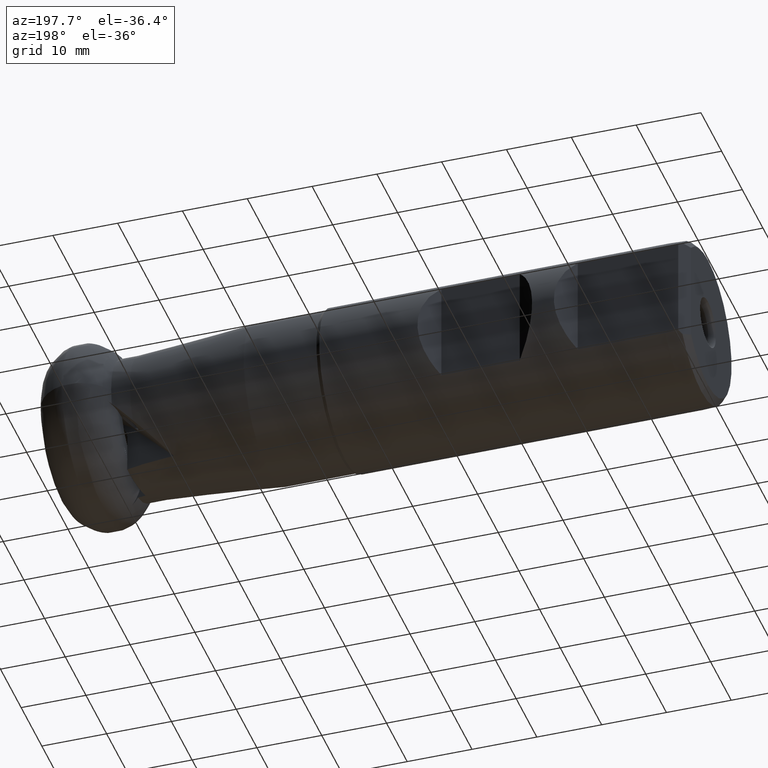
[diagram: clean part render]
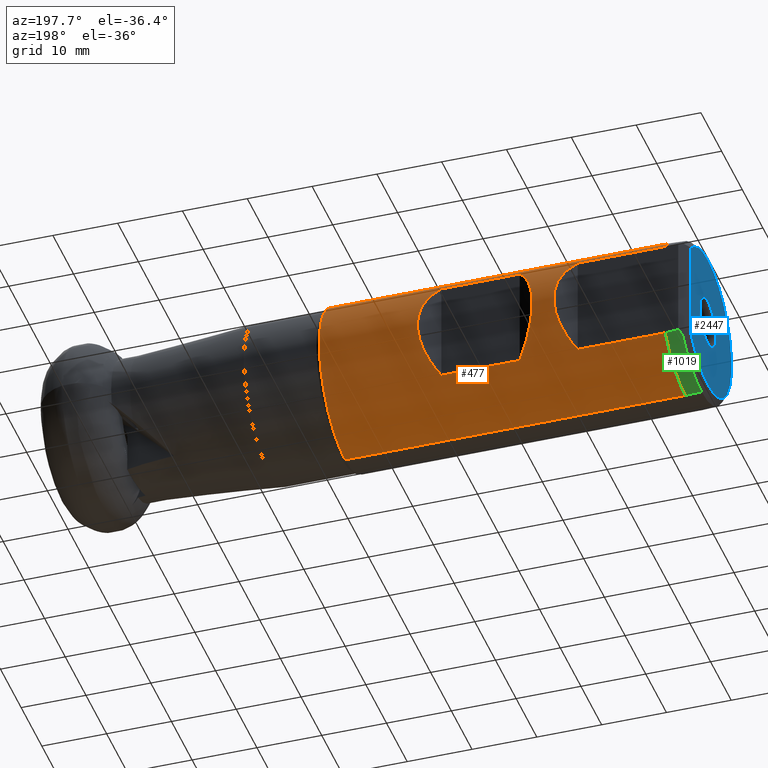
[diagram: same view with three faces highlighted in distinct colors, each labeled with its STEP entity id]
A machine part, auxiliary view with three faces highlighted in distinct colors.
Their STEP definitions:

[orange] entity #477 — the highlighted cylindrical surface (partial cylindrical patch) has radius 12.5 mm, axis along (1, -0, -0).
#5 = CARTESIAN_POINT ( 'NONE',  ( -95.25000000000000000, 0.0000000000000000000, -12.49999999999998900 ) ) ;
#36 = DIRECTION ( 'NONE',  ( 1.000000000000000000, -0.0000000000000000000, -0.0000000000000000000 ) ) ;
#64 = EDGE_CURVE ( 'NONE', #2789, #1758, #932, .T. ) ;
#97 = LINE ( 'NONE', #1852, #4157 ) ;
#203 = ORIENTED_EDGE ( 'NONE', *, *, #349, .F. ) ;
#231 = DIRECTION ( 'NONE',  ( 0.0000000000000000000, 0.0000000000000000000, -1.000000000000000000 ) ) ;
#235 = CARTESIAN_POINT ( 'NONE',  ( -60.70000000000000300, 9.700000000000011700, 7.884161337770784400 ) ) ;
#287 = DIRECTION ( 'NONE',  ( 1.000000000000000000, -0.0000000000000000000, -0.0000000000000000000 ) ) ;
#320 = CIRCLE ( 'NONE', #2833, 12.49999999999998900 ) ;
#327 = VERTEX_POINT ( 'NONE', #4078 ) ;
#349 = EDGE_CURVE ( 'NONE', #2933, #2977, #1242, .T. ) ;
#361 = CARTESIAN_POINT ( 'NONE',  ( -76.69717868338568700, 13.59717868338556100, -3.089404912919587100 ) ) ;
#374 = VECTOR ( 'NONE', #36, 1000.000000000000000 ) ;
#396 = EDGE_LOOP ( 'NONE', ( #2652, #203, #2732, #2431 ) ) ;
#413 = AXIS2_PLACEMENT_3D ( 'NONE', #1223, #2490, #1863 ) ;
#431 = CARTESIAN_POINT ( 'NONE',  ( -81.75000000000000000, 9.700000000000011700, -7.884161337770770200 ) ) ;
#444 = EDGE_CURVE ( 'NONE', #1969, #2789, #623, .T. ) ;
#477 = ADVANCED_FACE ( 'NONE', ( #2555, #718 ), #4116, .T. ) ;
#541 = CARTESIAN_POINT ( 'NONE',  ( -95.25000000000000000, 1.530808498934190100E-015, 12.49999999999998900 ) ) ;
#542 = EDGE_CURVE ( 'NONE', #2977, #1925, #3202, .T. ) ;
#623 = CIRCLE ( 'NONE', #413, 12.49999999999998900 ) ;
#689 = ORIENTED_EDGE ( 'NONE', *, *, #4023, .F. ) ;
#695 = CARTESIAN_POINT ( 'NONE',  ( -95.25000000000000000, 9.700000000000020600, -7.884161337770772000 ) ) ;
#718 = FACE_OUTER_BOUND ( 'NONE', #1429, .T. ) ;
#869 = DIRECTION ( 'NONE',  ( 1.000000000000000000, -0.0000000000000000000, -0.0000000000000000000 ) ) ;
#932 = LINE ( 'NONE', #3603, #374 ) ;
#961 = VERTEX_POINT ( 'NONE', #431 ) ;
#987 = CARTESIAN_POINT ( 'NONE',  ( -60.70000000000000300, 9.700000000000011700, 7.884161337770784400 ) ) ;
#1223 = CARTESIAN_POINT ( 'NONE',  ( -95.25000000000000000, 0.0000000000000000000, 0.0000000000000000000 ) ) ;
#1242 = LINE ( 'NONE', #1778, #2649 ) ;
#1287 = CARTESIAN_POINT ( 'NONE',  ( -81.75000000000000000, 9.700000000000011700, -7.884161337770770200 ) ) ;
#1306 = CARTESIAN_POINT ( 'NONE',  ( -81.75000000000000000, 9.700000000000011700, 7.884161337770770200 ) ) ;
#1309 = CARTESIAN_POINT ( 'NONE',  ( -1.085601143030649500E-015, 9.700000000000020600, -7.884161337770772000 ) ) ;
#1373 = AXIS2_PLACEMENT_3D ( 'NONE', #3542, #3231, #2566 ) ;
#1409 = VERTEX_POINT ( 'NONE', #235 ) ;
#1429 = EDGE_LOOP ( 'NONE', ( #3878, #3032, #1808, #689, #4070, #3055, #2869, #2296 ) ) ;
#1494 = VECTOR ( 'NONE', #1882, 1000.000000000000000 ) ;
#1509 = CARTESIAN_POINT ( 'NONE',  ( -95.25000000000000000, 9.700000000000017100, 7.884161337770768400 ) ) ;
#1515 =( BOUNDED_CURVE ( )  B_SPLINE_CURVE ( 3, ( #987, #3604, #3918, #1647 ),
 .UNSPECIFIED., .F., .T. ) 
 B_SPLINE_CURVE_WITH_KNOTS ( ( 4, 4 ),
 ( 5.600687989903616600, 6.965682624455555900 ),
 .UNSPECIFIED. ) 
 CURVE ( )  GEOMETRIC_REPRESENTATION_ITEM ( )  RATIONAL_B_SPLINE_CURVE ( ( 1.000000000000000000, 0.8506666666666675700, 0.8506666666666675700, 1.000000000000000000 ) ) 
 REPRESENTATION_ITEM ( '' )  );
#1599 = VECTOR ( 'NONE', #3208, 1000.000000000000000 ) ;
#1616 = EDGE_CURVE ( 'NONE', #1409, #2933, #1515, .T. ) ;
#1647 = CARTESIAN_POINT ( 'NONE',  ( -60.70000000000000300, 9.700000000000011700, -7.884161337770784400 ) ) ;
#1733 = EDGE_CURVE ( 'NONE', #3307, #1813, #320, .T. ) ;
#1758 = VERTEX_POINT ( 'NONE', #3003 ) ;
#1765 =( BOUNDED_CURVE ( )  B_SPLINE_CURVE ( 3, ( #2942, #1938, #2590, #1287 ),
 .UNSPECIFIED., .F., .F. ) 
 B_SPLINE_CURVE_WITH_KNOTS ( ( 4, 4 ),
 ( 5.600687989903617500, 6.965682624455555900 ),
 .UNSPECIFIED. ) 
 CURVE ( )  GEOMETRIC_REPRESENTATION_ITEM ( )  RATIONAL_B_SPLINE_CURVE ( ( 1.000000000000000000, 0.8506666666666676800, 0.8506666666666676800, 1.000000000000000000 ) ) 
 REPRESENTATION_ITEM ( '' )  );
#1778 = CARTESIAN_POINT ( 'NONE',  ( 0.0000000000000000000, 9.700000000000011700, -7.884161337770782700 ) ) ;
#1808 = ORIENTED_EDGE ( 'NONE', *, *, #2853, .F. ) ;
#1813 = VERTEX_POINT ( 'NONE', #695 ) ;
#1852 = CARTESIAN_POINT ( 'NONE',  ( 0.0000000000000000000, 0.0000000000000000000, -12.49999999999999300 ) ) ;
#1863 = DIRECTION ( 'NONE',  ( 0.0000000000000000000, 0.0000000000000000000, -1.000000000000000000 ) ) ;
#1865 = CARTESIAN_POINT ( 'NONE',  ( 0.0000000000000000000, 9.700000000000011700, 7.884161337770782700 ) ) ;
#1882 = DIRECTION ( 'NONE',  ( 1.000000000000000000, -0.0000000000000000000, -0.0000000000000000000 ) ) ;
#1925 = VERTEX_POINT ( 'NONE', #2108 ) ;
#1934 = CIRCLE ( 'NONE', #2335, 12.49999999999999500 ) ;
#1938 = CARTESIAN_POINT ( 'NONE',  ( -77.85282131661458000, 13.59717868338556100, 3.089404912919578200 ) ) ;
#1969 = VERTEX_POINT ( 'NONE', #1509 ) ;
#2028 = EDGE_CURVE ( 'NONE', #1969, #2322, #3485, .T. ) ;
#2108 = CARTESIAN_POINT ( 'NONE',  ( -72.79999999999999700, 9.700000000000011700, 7.884161337770777300 ) ) ;
#2142 = DIRECTION ( 'NONE',  ( -1.000000000000000000, 0.0000000000000000000, 0.0000000000000000000 ) ) ;
#2170 = CARTESIAN_POINT ( 'NONE',  ( -1.085601143030649500E-015, 9.700000000000020600, 7.884161337770772000 ) ) ;
#2276 = DIRECTION ( 'NONE',  ( 0.0000000000000000000, 0.0000000000000000000, -1.000000000000000000 ) ) ;
#2296 = ORIENTED_EDGE ( 'NONE', *, *, #2028, .F. ) ;
#2322 = VERTEX_POINT ( 'NONE', #1306 ) ;
#2335 = AXIS2_PLACEMENT_3D ( 'NONE', #3801, #869, #231 ) ;
#2431 = ORIENTED_EDGE ( 'NONE', *, *, #3089, .F. ) ;
#2490 = DIRECTION ( 'NONE',  ( 1.000000000000000000, -0.0000000000000000000, -0.0000000000000000000 ) ) ;
#2555 = FACE_BOUND ( 'NONE', #396, .T. ) ;
#2566 = DIRECTION ( 'NONE',  ( 0.0000000000000000000, 0.0000000000000000000, -1.000000000000000000 ) ) ;
#2590 = CARTESIAN_POINT ( 'NONE',  ( -77.85282131661458000, 13.59717868338555600, -3.089404912919588000 ) ) ;
#2624 = CARTESIAN_POINT ( 'NONE',  ( -76.69717868338568700, 13.59717868338556100, 3.089404912919580000 ) ) ;
#2640 = LINE ( 'NONE', #1865, #1494 ) ;
#2649 = VECTOR ( 'NONE', #2142, 1000.000000000000000 ) ;
#2652 = ORIENTED_EDGE ( 'NONE', *, *, #542, .F. ) ;
#2732 = ORIENTED_EDGE ( 'NONE', *, *, #1616, .F. ) ;
#2764 = CARTESIAN_POINT ( 'NONE',  ( -60.70000000000000300, 9.700000000000011700, -7.884161337770784400 ) ) ;
#2789 = VERTEX_POINT ( 'NONE', #541 ) ;
#2833 = AXIS2_PLACEMENT_3D ( 'NONE', #3852, #287, #2276 ) ;
#2852 = CARTESIAN_POINT ( 'NONE',  ( -72.79999999999999700, 9.700000000000011700, -7.884161337770791500 ) ) ;
#2853 = EDGE_CURVE ( 'NONE', #327, #1758, #1934, .T. ) ;
#2869 = ORIENTED_EDGE ( 'NONE', *, *, #3271, .F. ) ;
#2933 = VERTEX_POINT ( 'NONE', #2764 ) ;
#2942 = CARTESIAN_POINT ( 'NONE',  ( -81.75000000000000000, 9.700000000000011700, 7.884161337770770200 ) ) ;
#2977 = VERTEX_POINT ( 'NONE', #2852 ) ;
#3003 = CARTESIAN_POINT ( 'NONE',  ( -42.75000000000000000, 1.530808498934190900E-015, 12.49999999999999500 ) ) ;
#3032 = ORIENTED_EDGE ( 'NONE', *, *, #64, .T. ) ;
#3055 = ORIENTED_EDGE ( 'NONE', *, *, #4118, .F. ) ;
#3089 = EDGE_CURVE ( 'NONE', #1925, #1409, #2640, .T. ) ;
#3202 =( BOUNDED_CURVE ( )  B_SPLINE_CURVE ( 3, ( #3890, #361, #2624, #3298 ),
 .UNSPECIFIED., .F., .T. ) 
 B_SPLINE_CURVE_WITH_KNOTS ( ( 4, 4 ),
 ( 2.459095336313823000, 3.824089970865762700 ),
 .UNSPECIFIED. ) 
 CURVE ( )  GEOMETRIC_REPRESENTATION_ITEM ( )  RATIONAL_B_SPLINE_CURVE ( ( 1.000000000000000000, 0.8506666666666673500, 0.8506666666666673500, 1.000000000000000000 ) ) 
 REPRESENTATION_ITEM ( '' )  );
#3208 = DIRECTION ( 'NONE',  ( 1.000000000000000000, -0.0000000000000000000, -0.0000000000000000000 ) ) ;
#3231 = DIRECTION ( 'NONE',  ( 1.000000000000000000, -0.0000000000000000000, -0.0000000000000000000 ) ) ;
#3265 = VECTOR ( 'NONE', #4237, 1000.000000000000000 ) ;
#3271 = EDGE_CURVE ( 'NONE', #2322, #961, #1765, .T. ) ;
#3298 = CARTESIAN_POINT ( 'NONE',  ( -72.79999999999999700, 9.700000000000011700, 7.884161337770777300 ) ) ;
#3307 = VERTEX_POINT ( 'NONE', #5 ) ;
#3485 = LINE ( 'NONE', #2170, #1599 ) ;
#3522 = LINE ( 'NONE', #1309, #3265 ) ;
#3542 = CARTESIAN_POINT ( 'NONE',  ( 0.0000000000000000000, 0.0000000000000000000, 0.0000000000000000000 ) ) ;
#3603 = CARTESIAN_POINT ( 'NONE',  ( 0.0000000000000000000, 1.530808498934190500E-015, 12.49999999999999300 ) ) ;
#3604 = CARTESIAN_POINT ( 'NONE',  ( -56.80282131661454100, 13.59717868338555700, 3.089404912919585700 ) ) ;
#3801 = CARTESIAN_POINT ( 'NONE',  ( -42.75000000000000000, 0.0000000000000000000, 0.0000000000000000000 ) ) ;
#3852 = CARTESIAN_POINT ( 'NONE',  ( -95.25000000000000000, 0.0000000000000000000, 0.0000000000000000000 ) ) ;
#3878 = ORIENTED_EDGE ( 'NONE', *, *, #444, .T. ) ;
#3890 = CARTESIAN_POINT ( 'NONE',  ( -72.79999999999999700, 9.700000000000011700, -7.884161337770791500 ) ) ;
#3918 = CARTESIAN_POINT ( 'NONE',  ( -56.80282131661454100, 13.59717868338556100, -3.089404912919583100 ) ) ;
#4023 = EDGE_CURVE ( 'NONE', #3307, #327, #97, .T. ) ;
#4070 = ORIENTED_EDGE ( 'NONE', *, *, #1733, .T. ) ;
#4078 = CARTESIAN_POINT ( 'NONE',  ( -42.75000000000000000, 0.0000000000000000000, -12.49999999999999500 ) ) ;
#4116 = CYLINDRICAL_SURFACE ( 'NONE', #1373, 12.49999999999999300 ) ;
#4118 = EDGE_CURVE ( 'NONE', #961, #1813, #3522, .T. ) ;
#4157 = VECTOR ( 'NONE', #4175, 1000.000000000000000 ) ;
#4175 = DIRECTION ( 'NONE',  ( 1.000000000000000000, -0.0000000000000000000, -0.0000000000000000000 ) ) ;
#4237 = DIRECTION ( 'NONE',  ( -1.000000000000000000, 0.0000000000000000000, 0.0000000000000000000 ) ) ;

[blue] entity #2447 — the highlighted planar face has unit normal (-1, 0, 0).
#14 = CARTESIAN_POINT ( 'NONE',  ( -98.75000000000000000, 8.199999999999992200, -25.00000000000000000 ) ) ;
#30 = ORIENTED_EDGE ( 'NONE', *, *, #2246, .T. ) ;
#59 = DIRECTION ( 'NONE',  ( 0.0000000000000000000, 0.0000000000000000000, -1.000000000000000000 ) ) ;
#218 = CIRCLE ( 'NONE', #309, 3.827350269189615100 ) ;
#298 = AXIS2_PLACEMENT_3D ( 'NONE', #4234, #2570, #314 ) ;
#309 = AXIS2_PLACEMENT_3D ( 'NONE', #2278, #939, #2923 ) ;
#314 = DIRECTION ( 'NONE',  ( 0.0000000000000000000, 0.0000000000000000000, -1.000000000000000000 ) ) ;
#363 = DIRECTION ( 'NONE',  ( -0.0000000000000000000, -0.0000000000000000000, 1.000000000000000000 ) ) ;
#384 = DIRECTION ( 'NONE',  ( -1.000000000000000000, 0.0000000000000000000, 0.0000000000000000000 ) ) ;
#387 = DIRECTION ( 'NONE',  ( 1.000000000000000000, -0.0000000000000000000, -0.0000000000000000000 ) ) ;
#459 = ORIENTED_EDGE ( 'NONE', *, *, #850, .T. ) ;
#596 = CARTESIAN_POINT ( 'NONE',  ( -98.75000000000000000, 1.457329690985349600E-015, 11.39999999999998800 ) ) ;
#686 = CARTESIAN_POINT ( 'NONE',  ( -98.75000000000000000, 11.39999999999998800, 0.0000000000000000000 ) ) ;
#825 = FACE_OUTER_BOUND ( 'NONE', #1897, .T. ) ;
#850 = EDGE_CURVE ( 'NONE', #3102, #1302, #2101, .T. ) ;
#904 = CARTESIAN_POINT ( 'NONE',  ( -98.75000000000000000, 0.0000000000000000000, 3.827350269189615100 ) ) ;
#939 = DIRECTION ( 'NONE',  ( 1.000000000000000000, -0.0000000000000000000, -0.0000000000000000000 ) ) ;
#1063 = CARTESIAN_POINT ( 'NONE',  ( -98.75000000000000000, 4.687152256378822200E-016, -3.827350269189615100 ) ) ;
#1079 = CARTESIAN_POINT ( 'NONE',  ( -98.75000000000000000, 0.0000000000000000000, 0.0000000000000000000 ) ) ;
#1114 = VERTEX_POINT ( 'NONE', #3154 ) ;
#1302 = VERTEX_POINT ( 'NONE', #1063 ) ;
#1592 = CIRCLE ( 'NONE', #2252, 11.39999999999998800 ) ;
#1637 = DIRECTION ( 'NONE',  ( 1.000000000000000000, -0.0000000000000000000, -0.0000000000000000000 ) ) ;
#1880 = LINE ( 'NONE', #14, #3525 ) ;
#1897 = EDGE_LOOP ( 'NONE', ( #2766, #3330, #4244, #3396 ) ) ;
#1902 = CARTESIAN_POINT ( 'NONE',  ( -98.75000000000000000, 0.0000000000000000000, 0.0000000000000000000 ) ) ;
#2101 = CIRCLE ( 'NONE', #3935, 3.827350269189615100 ) ;
#2113 = CARTESIAN_POINT ( 'NONE',  ( -98.75000000000000000, 8.199999999999992200, 7.919595949289323800 ) ) ;
#2224 = VERTEX_POINT ( 'NONE', #596 ) ;
#2225 = DIRECTION ( 'NONE',  ( 0.0000000000000000000, 0.0000000000000000000, -1.000000000000000000 ) ) ;
#2246 = EDGE_CURVE ( 'NONE', #1302, #3102, #218, .T. ) ;
#2252 = AXIS2_PLACEMENT_3D ( 'NONE', #1902, #3535, #2879 ) ;
#2278 = CARTESIAN_POINT ( 'NONE',  ( -98.75000000000000000, 0.0000000000000000000, 0.0000000000000000000 ) ) ;
#2327 = EDGE_CURVE ( 'NONE', #1114, #4200, #3006, .T. ) ;
#2447 = ADVANCED_FACE ( 'NONE', ( #825, #3480 ), #3303, .T. ) ;
#2570 = DIRECTION ( 'NONE',  ( 1.000000000000000000, -0.0000000000000000000, -0.0000000000000000000 ) ) ;
#2583 = EDGE_LOOP ( 'NONE', ( #459, #30 ) ) ;
#2766 = ORIENTED_EDGE ( 'NONE', *, *, #3225, .F. ) ;
#2879 = DIRECTION ( 'NONE',  ( 0.0000000000000000000, 0.0000000000000000000, -1.000000000000000000 ) ) ;
#2921 = VERTEX_POINT ( 'NONE', #2113 ) ;
#2923 = DIRECTION ( 'NONE',  ( 0.0000000000000000000, 0.0000000000000000000, -1.000000000000000000 ) ) ;
#2925 = CARTESIAN_POINT ( 'NONE',  ( -98.75000000000000000, 8.199999999999992200, -7.919595949289323800 ) ) ;
#3006 = CIRCLE ( 'NONE', #4201, 11.39999999999998800 ) ;
#3102 = VERTEX_POINT ( 'NONE', #904 ) ;
#3154 = CARTESIAN_POINT ( 'NONE',  ( -98.75000000000000000, 0.0000000000000000000, -11.39999999999998800 ) ) ;
#3225 = EDGE_CURVE ( 'NONE', #4200, #2921, #1880, .T. ) ;
#3303 = PLANE ( 'NONE',  #3810 ) ;
#3330 = ORIENTED_EDGE ( 'NONE', *, *, #2327, .F. ) ;
#3396 = ORIENTED_EDGE ( 'NONE', *, *, #3658, .F. ) ;
#3480 = FACE_BOUND ( 'NONE', #2583, .T. ) ;
#3498 = EDGE_CURVE ( 'NONE', #2224, #1114, #1592, .T. ) ;
#3525 = VECTOR ( 'NONE', #363, 1000.000000000000000 ) ;
#3535 = DIRECTION ( 'NONE',  ( 1.000000000000000000, -0.0000000000000000000, -0.0000000000000000000 ) ) ;
#3584 = CARTESIAN_POINT ( 'NONE',  ( -98.75000000000000000, 0.0000000000000000000, 0.0000000000000000000 ) ) ;
#3658 = EDGE_CURVE ( 'NONE', #2921, #2224, #3884, .T. ) ;
#3810 = AXIS2_PLACEMENT_3D ( 'NONE', #686, #384, #3979 ) ;
#3884 = CIRCLE ( 'NONE', #298, 11.39999999999998800 ) ;
#3935 = AXIS2_PLACEMENT_3D ( 'NONE', #1079, #387, #59 ) ;
#3979 = DIRECTION ( 'NONE',  ( 0.0000000000000000000, 0.0000000000000000000, 1.000000000000000000 ) ) ;
#4200 = VERTEX_POINT ( 'NONE', #2925 ) ;
#4201 = AXIS2_PLACEMENT_3D ( 'NONE', #3584, #1637, #2225 ) ;
#4234 = CARTESIAN_POINT ( 'NONE',  ( -98.75000000000000000, 0.0000000000000000000, 0.0000000000000000000 ) ) ;
#4244 = ORIENTED_EDGE ( 'NONE', *, *, #3498, .F. ) ;

[green] entity #1019 — the highlighted conical surface has half-angle 2.291 deg.
#5 = CARTESIAN_POINT ( 'NONE',  ( -95.25000000000000000, 0.0000000000000000000, -12.49999999999998900 ) ) ;
#7 = EDGE_CURVE ( 'NONE', #149, #1533, #2562, .T. ) ;
#149 = VERTEX_POINT ( 'NONE', #4029 ) ;
#198 = ORIENTED_EDGE ( 'NONE', *, *, #7, .T. ) ;
#287 = DIRECTION ( 'NONE',  ( 1.000000000000000000, -0.0000000000000000000, -0.0000000000000000000 ) ) ;
#320 = CIRCLE ( 'NONE', #2833, 12.49999999999998900 ) ;
#375 = ORIENTED_EDGE ( 'NONE', *, *, #1031, .F. ) ;
#381 = CARTESIAN_POINT ( 'NONE',  ( -97.75000000000000000, 0.0000000000000000000, 0.0000000000000000000 ) ) ;
#521 = DIRECTION ( 'NONE',  ( 0.9992009587217897100, 0.0000000000000000000, -0.03996803834886714800 ) ) ;
#661 = DIRECTION ( 'NONE',  ( 0.0000000000000000000, 0.0000000000000000000, -1.000000000000000000 ) ) ;
#695 = CARTESIAN_POINT ( 'NONE',  ( -95.25000000000000000, 9.700000000000020600, -7.884161337770772000 ) ) ;
#771 = LINE ( 'NONE', #3775, #3175 ) ;
#800 = DIRECTION ( 'NONE',  ( 1.000000000000000000, -0.0000000000000000000, -0.0000000000000000000 ) ) ;
#879 = AXIS2_PLACEMENT_3D ( 'NONE', #381, #1343, #661 ) ;
#1019 = ADVANCED_FACE ( 'NONE', ( #1553 ), #1550, .T. ) ;
#1031 = EDGE_CURVE ( 'NONE', #1537, #1533, #3523, .T. ) ;
#1050 = ORIENTED_EDGE ( 'NONE', *, *, #1733, .F. ) ;
#1053 = CARTESIAN_POINT ( 'NONE',  ( -97.75000000000000000, 9.199999999999999300, -8.313843876330606600 ) ) ;
#1185 = CARTESIAN_POINT ( 'NONE',  ( -97.41086265884733600, 9.539137341152667200, -7.947561283024414900 ) ) ;
#1343 = DIRECTION ( 'NONE',  ( 1.000000000000000000, -0.0000000000000000000, -0.0000000000000000000 ) ) ;
#1486 = ORIENTED_EDGE ( 'NONE', *, *, #1906, .F. ) ;
#1533 = VERTEX_POINT ( 'NONE', #1053 ) ;
#1537 = VERTEX_POINT ( 'NONE', #3972 ) ;
#1550 = CONICAL_SURFACE ( 'NONE', #2099, 12.49999999999998900, 0.03997868712328561000 ) ;
#1553 = FACE_OUTER_BOUND ( 'NONE', #3361, .T. ) ;
#1733 = EDGE_CURVE ( 'NONE', #3307, #1813, #320, .T. ) ;
#1813 = VERTEX_POINT ( 'NONE', #695 ) ;
#1820 = CARTESIAN_POINT ( 'NONE',  ( -97.57758299606851400, 9.372417003931486700, -8.133335603076618600 ) ) ;
#1890 = B_SPLINE_CURVE_WITH_KNOTS ( 'NONE', 3,
 ( #3111, #2451, #4158, #2442 ),
 .UNSPECIFIED., .F., .F.,
 ( 4, 4 ),
 ( 0.02305638270487965800, 0.02506043153770305000 ),
 .UNSPECIFIED. ) ;
#1906 = EDGE_CURVE ( 'NONE', #149, #3307, #771, .T. ) ;
#2099 = AXIS2_PLACEMENT_3D ( 'NONE', #2416, #800, #3081 ) ;
#2276 = DIRECTION ( 'NONE',  ( 0.0000000000000000000, 0.0000000000000000000, -1.000000000000000000 ) ) ;
#2416 = CARTESIAN_POINT ( 'NONE',  ( -95.25000000000000000, 0.0000000000000000000, 0.0000000000000000000 ) ) ;
#2442 = CARTESIAN_POINT ( 'NONE',  ( -97.25000000000000000, 9.700000000000009900, -7.756700329392626400 ) ) ;
#2451 = CARTESIAN_POINT ( 'NONE',  ( -95.91667970875816700, 9.700000000000009900, -7.841881653211036300 ) ) ;
#2562 = CIRCLE ( 'NONE', #879, 12.40000000000000000 ) ;
#2735 = ORIENTED_EDGE ( 'NONE', *, *, #3450, .F. ) ;
#2753 = CARTESIAN_POINT ( 'NONE',  ( -97.25000000000000000, 9.700000000000009900, -7.756700329392626400 ) ) ;
#2833 = AXIS2_PLACEMENT_3D ( 'NONE', #3852, #287, #2276 ) ;
#3081 = DIRECTION ( 'NONE',  ( 0.0000000000000000000, 0.0000000000000000000, -1.000000000000000000 ) ) ;
#3111 = CARTESIAN_POINT ( 'NONE',  ( -95.25000000000000000, 9.700000000000020600, -7.884161337770772000 ) ) ;
#3175 = VECTOR ( 'NONE', #521, 999.9999999999998900 ) ;
#3307 = VERTEX_POINT ( 'NONE', #5 ) ;
#3361 = EDGE_LOOP ( 'NONE', ( #1486, #198, #375, #2735, #1050 ) ) ;
#3450 = EDGE_CURVE ( 'NONE', #1813, #1537, #1890, .T. ) ;
#3523 =( BOUNDED_CURVE ( )  B_SPLINE_CURVE ( 3, ( #2753, #1185, #1820, #3826 ),
 .UNSPECIFIED., .F., .T. ) 
 B_SPLINE_CURVE_WITH_KNOTS ( ( 4, 4 ),
 ( 0.6999201633618972200, 0.7620759907146298400 ),
 .UNSPECIFIED. ) 
 CURVE ( )  GEOMETRIC_REPRESENTATION_ITEM ( )  RATIONAL_B_SPLINE_CURVE ( ( 1.000000000000000000, 0.9996780803385784100, 0.9996780803385784100, 1.000000000000000000 ) ) 
 REPRESENTATION_ITEM ( '' )  );
#3775 = CARTESIAN_POINT ( 'NONE',  ( -95.25000000000000000, 0.0000000000000000000, -12.49999999999998900 ) ) ;
#3826 = CARTESIAN_POINT ( 'NONE',  ( -97.75000000000000000, 9.199999999999999300, -8.313843876330606600 ) ) ;
#3852 = CARTESIAN_POINT ( 'NONE',  ( -95.25000000000000000, 0.0000000000000000000, 0.0000000000000000000 ) ) ;
#3972 = CARTESIAN_POINT ( 'NONE',  ( -97.25000000000000000, 9.700000000000009900, -7.756700329392626400 ) ) ;
#4029 = CARTESIAN_POINT ( 'NONE',  ( -97.75000000000000000, 0.0000000000000000000, -12.40000000000000000 ) ) ;
#4158 = CARTESIAN_POINT ( 'NONE',  ( -96.58334740627661600, 9.700000000000009900, -7.799397996505892800 ) ) ;